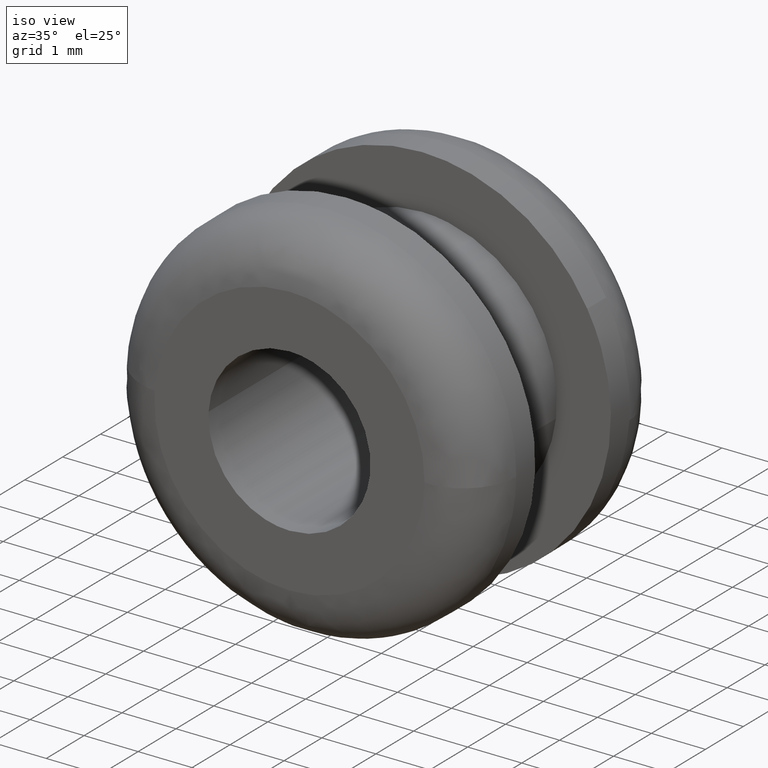
[diagram: clean part render]
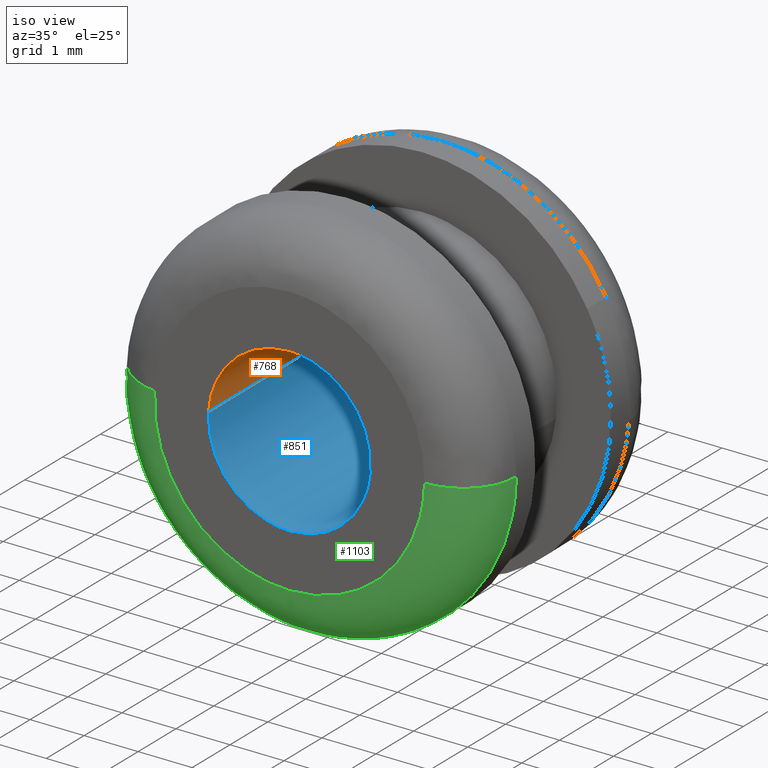
[diagram: same view with three faces highlighted in distinct colors, each labeled with its STEP entity id]
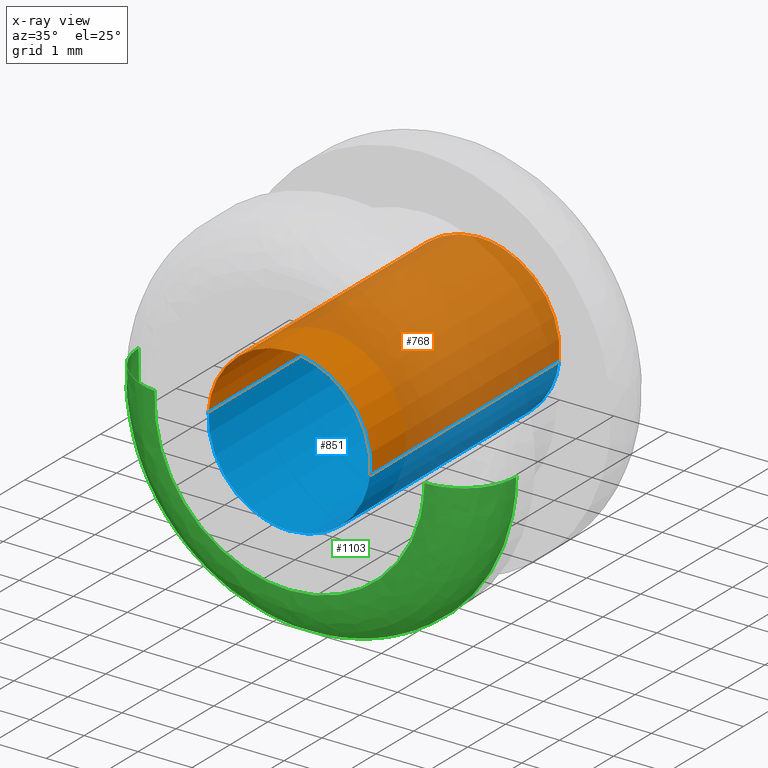
[diagram: x-ray of the same camera — body ghosted, the three highlighted faces saturated]
A machine part, iso view with three faces highlighted in distinct colors.
The next image is the same camera in x-ray (body ghosted, the three faces saturated) — at least one of them is partly hidden behind the body in this view.
Their STEP definitions:

[orange] entity #768 — the highlighted face is a freeform B-spline surface patch.
#662=CARTESIAN_POINT('',(1.486886853652700,5.125000000000002,-0.199155692128891));
#663=CARTESIAN_POINT('',(1.488204275768930,5.125000000000002,-0.188072359268188));
#664=CARTESIAN_POINT('',(1.494581423172908,5.125000000000001,-0.134422092956967));
#665=CARTESIAN_POINT('',(1.497202197632800,5.125000000000001,-0.091572809302286));
#666=CARTESIAN_POINT('',(1.588775006935085,5.125000000000001,1.405629388330514));
#667=CARTESIAN_POINT('',(0.091572809302285,5.125000000000001,1.497202197632800));
#668=CARTESIAN_POINT('',(-1.405629388330515,5.125000000000001,1.588775006935085));
#669=CARTESIAN_POINT('',(-1.497860766126688,5.125000000000001,0.080805309606100));
#670=CARTESIAN_POINT('',(-1.498515422629390,5.124999999999999,0.070101770400434));
#671=CARTESIAN_POINT('',(1.486886853652700,-0.128125000000000,-0.199155692128891));
#672=CARTESIAN_POINT('',(1.488204275768930,-0.128125000000000,-0.188072359268188));
#673=CARTESIAN_POINT('',(1.494581423172908,-0.128125000000000,-0.134422092956967));
#674=CARTESIAN_POINT('',(1.497202197632800,-0.128125000000000,-0.091572809302286));
#675=CARTESIAN_POINT('',(1.588775006935085,-0.128125000000000,1.405629388330514));
#676=CARTESIAN_POINT('',(0.091572809302285,-0.128125000000000,1.497202197632800));
#677=CARTESIAN_POINT('',(-1.405629388330515,-0.128125000000000,1.588775006935085));
#678=CARTESIAN_POINT('',(-1.497860766126688,-0.128125000000000,0.080805309606100));
#679=CARTESIAN_POINT('',(-1.498515422629390,-0.128125000000000,0.070101770400434));
#687=(BOUNDED_SURFACE()B_SPLINE_SURFACE(2,1,((#662,#671),(#663,#672),(#664,#673),(#665,#674),(#666,#675),(#667,#676),(#668,#677),(#669,#678),(#670,#679)),.UNSPECIFIED.,.F.,.F.,.U.)B_SPLINE_SURFACE_WITH_KNOTS((3,1,2,2,1,3),(2,2),(3.062739121878599,3.078760800517997,3.141592653589793,4.712388980384690,6.283185307179586,6.299209086163595),(0.0,5.253125000000002),.UNSPECIFIED.)GEOMETRIC_REPRESENTATION_ITEM()RATIONAL_B_SPLINE_SURFACE(((0.972008933159718,0.972008933159718),(0.974757366977422,0.974757366977422),(0.988284271247462,0.988284271247462),(1.0,1.0),(0.707106781186548,0.707106781186548),(1.0,1.0),(0.707106781186548,0.707106781186548),(1.002987819696369,1.002987819696369),(1.005975639392738,1.005975639392738)))REPRESENTATION_ITEM('')SURFACE());
#688=CARTESIAN_POINT('',(1.489514363747489,5.000000000000001,-0.177050727729420));
#689=VERTEX_POINT('',#688);
#690=CARTESIAN_POINT('',(0.0,5.0,1.500000000000000));
#691=VERTEX_POINT('',#690);
#692=CARTESIAN_POINT('',(1.489514363747489,5.000000000000001,-0.177050727729420));
#693=CARTESIAN_POINT('',(1.500000000000000,5.0,-0.088835548622643));
#694=CARTESIAN_POINT('',(1.500000000000000,5.0,-3.061516E-016));
#695=CARTESIAN_POINT('',(1.500000000000000,5.000000000000001,1.500000000000000));
#696=CARTESIAN_POINT('',(0.0,5.0,1.500000000000000));
#704=(BOUNDED_CURVE()B_SPLINE_CURVE(2,(#692,#693,#694,#695,#696),.UNSPECIFIED.,.F.,.U.)B_SPLINE_CURVE_WITH_KNOTS((3,2,3),(0.229562615174246,0.250000000000000,0.500000000000000),.UNSPECIFIED.)CURVE()GEOMETRIC_REPRESENTATION_ITEM()RATIONAL_B_SPLINE_CURVE((0.956027031844729,0.976056114297022,1.0,0.707106781186548,1.0))REPRESENTATION_ITEM(''));
#705=EDGE_CURVE('',#689,#691,#704,.T.);
#706=ORIENTED_EDGE('',*,*,#705,.F.);
#707=CARTESIAN_POINT('',(1.489514362852228,-2.868382E-016,-0.177050735261209));
#708=VERTEX_POINT('',#707);
#709=CARTESIAN_POINT('',(1.489514363747489,5.000000000000001,-0.177050727729420));
#710=CARTESIAN_POINT('',(1.489514362852228,-2.868382E-016,-0.177050735261209));
#711=QUASI_UNIFORM_CURVE('',1,(#709,#710),.UNSPECIFIED.,.F.,.U.);
#712=EDGE_CURVE('',#689,#708,#711,.T.);
#713=ORIENTED_EDGE('',*,*,#712,.T.);
#714=CARTESIAN_POINT('',(0.0,-2.755364E-016,1.500000000000000));
#715=VERTEX_POINT('',#714);
#716=CARTESIAN_POINT('',(1.489514362852228,-2.868382E-016,-0.177050735261209));
#717=CARTESIAN_POINT('',(1.500000000000000,-2.755364E-016,-0.088835556234056));
#718=CARTESIAN_POINT('',(1.500000000000000,-2.755364E-016,-3.061516E-016));
#719=CARTESIAN_POINT('',(1.500000000000000,-2.755364E-016,1.500000000000000));
#720=CARTESIAN_POINT('',(0.0,-2.755364E-016,1.500000000000000));
#728=(BOUNDED_CURVE()B_SPLINE_CURVE(2,(#716,#717,#718,#719,#720),.UNSPECIFIED.,.F.,.U.)B_SPLINE_CURVE_WITH_KNOTS((3,2,3),(0.229562613465102,0.250000000000000,0.500000000000000),.UNSPECIFIED.)CURVE()GEOMETRIC_REPRESENTATION_ITEM()RATIONAL_B_SPLINE_CURVE((0.956027028494733,0.976056112294636,1.0,0.707106781186548,1.0))REPRESENTATION_ITEM(''));
#729=EDGE_CURVE('',#708,#715,#728,.T.);
#730=ORIENTED_EDGE('',*,*,#729,.T.);
#731=CARTESIAN_POINT('',(-1.497202332087954,3.570413E-017,0.091570610926976));
#732=VERTEX_POINT('',#731);
#733=CARTESIAN_POINT('',(0.0,-2.755364E-016,1.500000000000000));
#734=CARTESIAN_POINT('',(-1.411061176120985,-2.755364E-016,1.500000000000000));
#735=CARTESIAN_POINT('',(-1.497202332087955,3.570413E-017,0.091570610926976));
#743=(BOUNDED_CURVE()B_SPLINE_CURVE(2,(#733,#734,#735),.UNSPECIFIED.,.F.,.U.)B_SPLINE_CURVE_WITH_KNOTS((3,3),(0.500000000000000,0.739333215596308),.UNSPECIFIED.)CURVE()GEOMETRIC_REPRESENTATION_ITEM()RATIONAL_B_SPLINE_CURVE((1.0,0.719603696460094,0.976072584660381))REPRESENTATION_ITEM(''));
#744=EDGE_CURVE('',#715,#732,#743,.T.);
#745=ORIENTED_EDGE('',*,*,#744,.T.);
#746=CARTESIAN_POINT('',(-1.497202333729064,5.000000000000005,0.091570584093772));
#747=VERTEX_POINT('',#746);
#748=CARTESIAN_POINT('',(-1.497202333729064,5.000000000000005,0.091570584093772));
#749=CARTESIAN_POINT('',(-1.497202332087954,3.570413E-017,0.091570610926976));
#750=QUASI_UNIFORM_CURVE('',1,(#748,#749),.UNSPECIFIED.,.F.,.U.);
#751=EDGE_CURVE('',#747,#732,#750,.T.);
#752=ORIENTED_EDGE('',*,*,#751,.F.);
#753=CARTESIAN_POINT('',(0.0,5.0,1.500000000000000));
#754=CARTESIAN_POINT('',(-1.411061201457600,4.999999999999999,1.500000000000000));
#755=CARTESIAN_POINT('',(-1.497202333729064,5.000000000000005,0.091570584093772));
#763=(BOUNDED_CURVE()B_SPLINE_CURVE(2,(#753,#754,#755),.UNSPECIFIED.,.F.,.U.)B_SPLINE_CURVE_WITH_KNOTS((3,3),(0.500000000000000,0.739333218688732),.UNSPECIFIED.)CURVE()GEOMETRIC_REPRESENTATION_ITEM()RATIONAL_B_SPLINE_CURVE((1.0,0.719603692837093,0.976072591288050))REPRESENTATION_ITEM(''));
#764=EDGE_CURVE('',#691,#747,#763,.T.);
#765=ORIENTED_EDGE('',*,*,#764,.F.);
#766=EDGE_LOOP('',(#706,#713,#730,#745,#752,#765));
#767=FACE_OUTER_BOUND('',#766,.T.);
#768=ADVANCED_FACE('',(#767),#687,.F.);

[blue] entity #851 — the highlighted face is a freeform B-spline surface patch.
#688=CARTESIAN_POINT('',(1.489514363747489,5.000000000000001,-0.177050727729420));
#689=VERTEX_POINT('',#688);
#707=CARTESIAN_POINT('',(1.489514362852228,-2.868382E-016,-0.177050735261209));
#708=VERTEX_POINT('',#707);
#709=CARTESIAN_POINT('',(1.489514363747489,5.000000000000001,-0.177050727729420));
#710=CARTESIAN_POINT('',(1.489514362852228,-2.868382E-016,-0.177050735261209));
#711=QUASI_UNIFORM_CURVE('',1,(#709,#710),.UNSPECIFIED.,.F.,.U.);
#712=EDGE_CURVE('',#689,#708,#711,.T.);
#731=CARTESIAN_POINT('',(-1.497202332087954,3.570413E-017,0.091570610926976));
#732=VERTEX_POINT('',#731);
#746=CARTESIAN_POINT('',(-1.497202333729064,5.000000000000005,0.091570584093772));
#747=VERTEX_POINT('',#746);
#748=CARTESIAN_POINT('',(-1.497202333729064,5.000000000000005,0.091570584093772));
#749=CARTESIAN_POINT('',(-1.497202332087954,3.570413E-017,0.091570610926976));
#750=QUASI_UNIFORM_CURVE('',1,(#748,#749),.UNSPECIFIED.,.F.,.U.);
#751=EDGE_CURVE('',#747,#732,#750,.T.);
#769=CARTESIAN_POINT('',(-1.497202197632800,5.125000000000001,0.091572809302285));
#770=CARTESIAN_POINT('',(-1.588775006935085,5.125000000000001,-1.405629388330515));
#771=CARTESIAN_POINT('',(-0.091572809302285,5.125000000000001,-1.497202197632800));
#772=CARTESIAN_POINT('',(1.322315236259252,5.125000000000001,-1.583679295098791));
#773=CARTESIAN_POINT('',(1.489514289545500,5.125000000000002,-0.177051351985138));
#774=CARTESIAN_POINT('',(-1.497202197632800,-0.128125000000000,0.091572809302285));
#775=CARTESIAN_POINT('',(-1.588775006935085,-0.128125000000000,-1.405629388330515));
#776=CARTESIAN_POINT('',(-0.091572809302285,-0.128125000000000,-1.497202197632800));
#777=CARTESIAN_POINT('',(1.322315236259252,-0.128125000000000,-1.583679295098791));
#778=CARTESIAN_POINT('',(1.489514289545500,-0.128125000000000,-0.177051351985138));
#786=(BOUNDED_SURFACE()B_SPLINE_SURFACE(2,1,((#769,#774),(#770,#775),(#771,#776),(#772,#777),(#773,#778)),.UNSPECIFIED.,.F.,.F.,.U.)B_SPLINE_SURFACE_WITH_KNOTS((3,2,3),(2,2),(0.0,1.570796326794897,3.078760800517997),(0.0,5.253125000000001),.UNSPECIFIED.)GEOMETRIC_REPRESENTATION_ITEM()RATIONAL_B_SPLINE_SURFACE(((1.0,1.0),(0.707106781186548,0.707106781186548),(1.0,1.0),(0.718822509939086,0.718822509939086),(0.977505800795127,0.977505800795127)))REPRESENTATION_ITEM('')SURFACE());
#787=CARTESIAN_POINT('',(0.0,5.0,-1.500000000000000));
#788=VERTEX_POINT('',#787);
#789=CARTESIAN_POINT('',(0.0,5.0,-1.500000000000000));
#790=CARTESIAN_POINT('',(1.332262913490977,5.000000000000001,-1.500000000000000));
#791=CARTESIAN_POINT('',(1.489514363747489,5.000000000000001,-0.177050727729420));
#799=(BOUNDED_CURVE()B_SPLINE_CURVE(2,(#789,#790,#791),.UNSPECIFIED.,.F.,.U.)B_SPLINE_CURVE_WITH_KNOTS((3,3),(0.0,0.229562615174245),.UNSPECIFIED.)CURVE()GEOMETRIC_REPRESENTATION_ITEM()RATIONAL_B_SPLINE_CURVE((1.0,0.731050666889525,0.956027031844729))REPRESENTATION_ITEM(''));
#800=EDGE_CURVE('',#788,#689,#799,.T.);
#801=ORIENTED_EDGE('',*,*,#800,.F.);
#802=CARTESIAN_POINT('',(-1.497202333729064,5.000000000000005,0.091570584093772));
#803=CARTESIAN_POINT('',(-1.500000000000000,5.000000000000001,0.045828029224119));
#804=CARTESIAN_POINT('',(-1.500000000000000,5.0,-3.061516E-016));
#805=CARTESIAN_POINT('',(-1.500000000000000,5.000000000000001,-1.500000000000000));
#806=CARTESIAN_POINT('',(0.0,5.0,-1.500000000000000));
#814=(BOUNDED_CURVE()B_SPLINE_CURVE(2,(#802,#803,#804,#805,#806),.UNSPECIFIED.,.F.,.U.)B_SPLINE_CURVE_WITH_KNOTS((3,2,3),(0.739333218688732,0.750000000000000,1.0),.UNSPECIFIED.)CURVE()GEOMETRIC_REPRESENTATION_ITEM()RATIONAL_B_SPLINE_CURVE((0.976072591288050,0.987503088349455,1.0,0.707106781186548,1.0))REPRESENTATION_ITEM(''));
#815=EDGE_CURVE('',#747,#788,#814,.T.);
#816=ORIENTED_EDGE('',*,*,#815,.F.);
#817=ORIENTED_EDGE('',*,*,#751,.T.);
#818=CARTESIAN_POINT('',(0.0,-2.755364E-016,-1.500000000000000));
#819=VERTEX_POINT('',#818);
#820=CARTESIAN_POINT('',(-1.497202332087955,3.570413E-017,0.091570610926976));
#821=CARTESIAN_POINT('',(-1.500000000000000,-2.755364E-016,0.045828042678337));
#822=CARTESIAN_POINT('',(-1.500000000000000,-2.755364E-016,-3.061516E-016));
#823=CARTESIAN_POINT('',(-1.500000000000000,-2.755364E-016,-1.500000000000000));
#824=CARTESIAN_POINT('',(0.0,-2.755364E-016,-1.500000000000000));
#832=(BOUNDED_CURVE()B_SPLINE_CURVE(2,(#820,#821,#822,#823,#824),.UNSPECIFIED.,.F.,.U.)B_SPLINE_CURVE_WITH_KNOTS((3,2,3),(0.739333215596308,0.750000000000000,1.0),.UNSPECIFIED.)CURVE()GEOMETRIC_REPRESENTATION_ITEM()RATIONAL_B_SPLINE_CURVE((0.976072584660381,0.987503084726454,1.0,0.707106781186548,1.0))REPRESENTATION_ITEM(''));
#833=EDGE_CURVE('',#732,#819,#832,.T.);
#834=ORIENTED_EDGE('',*,*,#833,.T.);
#835=CARTESIAN_POINT('',(0.0,-2.755364E-016,-1.500000000000000));
#836=CARTESIAN_POINT('',(1.332262899922851,-2.755364E-016,-1.500000000000000));
#837=CARTESIAN_POINT('',(1.489514362852228,-2.868382E-016,-0.177050735261209));
#845=(BOUNDED_CURVE()B_SPLINE_CURVE(2,(#835,#836,#837),.UNSPECIFIED.,.F.,.U.)B_SPLINE_CURVE_WITH_KNOTS((3,3),(0.0,0.229562613465102),.UNSPECIFIED.)CURVE()GEOMETRIC_REPRESENTATION_ITEM()RATIONAL_B_SPLINE_CURVE((1.0,0.731050668891912,0.956027028494733))REPRESENTATION_ITEM(''));
#846=EDGE_CURVE('',#819,#708,#845,.T.);
#847=ORIENTED_EDGE('',*,*,#846,.T.);
#848=ORIENTED_EDGE('',*,*,#712,.F.);
#849=EDGE_LOOP('',(#801,#816,#817,#834,#847,#848));
#850=FACE_OUTER_BOUND('',#849,.T.);
#851=ADVANCED_FACE('',(#850),#786,.F.);

[green] entity #1103 — the highlighted face is a freeform B-spline surface patch.
#70=CARTESIAN_POINT('',(1.899550481738850,0.999999999998983,-2.939678208124894));
#71=VERTEX_POINT('',#70);
#72=CARTESIAN_POINT('',(3.499723654713332,0.999999999993827,-0.043981139593659));
#73=VERTEX_POINT('',#72);
#74=CARTESIAN_POINT('',(1.899550481738849,0.999999999998983,-2.939678208124894));
#75=CARTESIAN_POINT('',(3.476136023944697,0.999999999997179,-1.920926351079820));
#76=CARTESIAN_POINT('',(3.499723654713332,0.999999999993827,-0.043981139593659));
#84=(BOUNDED_CURVE()B_SPLINE_CURVE(2,(#74,#75,#76),.UNSPECIFIED.,.F.,.U.)B_SPLINE_CURVE_WITH_KNOTS((3,3),(0.092934687548090,0.247784295921535),.UNSPECIFIED.)CURVE()GEOMETRIC_REPRESENTATION_ITEM()RATIONAL_B_SPLINE_CURVE((0.863190132936236,0.816652436475568,0.994854295643567))REPRESENTATION_ITEM(''));
#85=EDGE_CURVE('',#71,#73,#84,.T.);
#128=CARTESIAN_POINT('',(-2.700686320416099,0.999999999999991,-2.226273433052903));
#129=VERTEX_POINT('',#128);
#135=CARTESIAN_POINT('',(-3.491479858441498,0.999999999993767,0.244066380514253));
#136=VERTEX_POINT('',#135);
#137=CARTESIAN_POINT('',(-3.491479858441499,0.999999999993767,0.244066380514253));
#138=CARTESIAN_POINT('',(-3.500000000000000,1.0,0.122181905561697));
#139=CARTESIAN_POINT('',(-3.500000000000000,1.0,-3.061516E-016));
#140=CARTESIAN_POINT('',(-3.500000000000000,1.0,-1.256627908634423));
#141=CARTESIAN_POINT('',(-2.700686320416099,0.999999999999991,-2.226273433052903));
#149=(BOUNDED_CURVE()B_SPLINE_CURVE(2,(#137,#138,#139,#140,#141),.UNSPECIFIED.,.F.,.U.)B_SPLINE_CURVE_WITH_KNOTS((3,2,3),(0.737833686535114,0.750000000000000,0.860504588013076),.UNSPECIFIED.)CURVE()GEOMETRIC_REPRESENTATION_ITEM()RATIONAL_B_SPLINE_CURVE((0.972879876387024,0.985746277152705,1.0,0.870535822092783,0.855522729322275))REPRESENTATION_ITEM(''));
#150=EDGE_CURVE('',#136,#129,#149,.T.);
#199=CARTESIAN_POINT('',(0.0,1.0,-3.500000000000000));
#200=VERTEX_POINT('',#199);
#201=CARTESIAN_POINT('',(0.0,1.0,-3.500000000000000));
#202=CARTESIAN_POINT('',(1.032415634382080,1.0,-3.500000000000001));
#203=CARTESIAN_POINT('',(1.899550481738850,0.999999999998983,-2.939678208124894));
#211=(BOUNDED_CURVE()B_SPLINE_CURVE(2,(#201,#202,#203),.UNSPECIFIED.,.F.,.U.)B_SPLINE_CURVE_WITH_KNOTS((3,3),(0.0,0.092934687548090),.UNSPECIFIED.)CURVE()GEOMETRIC_REPRESENTATION_ITEM()RATIONAL_B_SPLINE_CURVE((1.0,0.891120240898470,0.863190132936235))REPRESENTATION_ITEM(''));
#212=EDGE_CURVE('',#200,#71,#211,.T.);
#214=CARTESIAN_POINT('',(-2.700686320416099,0.999999999999991,-2.226273433052902));
#215=CARTESIAN_POINT('',(-1.650707701043124,1.0,-3.500000000000001));
#216=CARTESIAN_POINT('',(0.0,1.0,-3.500000000000000));
#224=(BOUNDED_CURVE()B_SPLINE_CURVE(2,(#214,#215,#216),.UNSPECIFIED.,.F.,.U.)B_SPLINE_CURVE_WITH_KNOTS((3,3),(0.860504588013076,1.0),.UNSPECIFIED.)CURVE()GEOMETRIC_REPRESENTATION_ITEM()RATIONAL_B_SPLINE_CURVE((0.855522729322274,0.836570959093765,1.0))REPRESENTATION_ITEM(''));
#225=EDGE_CURVE('',#129,#200,#224,.T.);
#1008=CARTESIAN_POINT('',(-3.489065129812964,1.069537111923129,0.243897389225861));
#1009=CARTESIAN_POINT('',(-3.496045361571412,1.069537111923128,0.144041940572958));
#1010=CARTESIAN_POINT('',(-3.497303211133006,1.069537111923128,0.043950721799507));
#1011=CARTESIAN_POINT('',(-3.541253932932515,1.069537111923128,-3.453352489333500));
#1012=CARTESIAN_POINT('',(-0.043950721799508,1.069537111923128,-3.497303211133006));
#1013=CARTESIAN_POINT('',(3.453352489333500,1.069537111923128,-3.541253932932515));
#1014=CARTESIAN_POINT('',(3.497303211133006,1.069537111923128,-0.043950721799508));
#1015=CARTESIAN_POINT('',(-3.568828273172317,-0.077537242823307,0.249473101257020));
#1016=CARTESIAN_POINT('',(-3.575968079259623,-0.077537242823307,0.147334867912579));
#1017=CARTESIAN_POINT('',(-3.577254684385009,-0.077537242823307,0.044955474532177));
#1018=CARTESIAN_POINT('',(-3.622210158917184,-0.077537242823307,-3.532299209852830));
#1019=CARTESIAN_POINT('',(-0.044955474532177,-0.077537242823307,-3.577254684385009));
#1020=CARTESIAN_POINT('',(3.532299209852830,-0.077537242823307,-3.622210158917184));
#1021=CARTESIAN_POINT('',(3.577254684385009,-0.077537242823307,-0.044955474532178));
#1022=CARTESIAN_POINT('',(-2.424546273866869,0.002420640585330,0.169483940325619));
#1023=CARTESIAN_POINT('',(-2.429396826743071,0.002420640585330,0.100094534582517));
#1024=CARTESIAN_POINT('',(-2.430270904570279,0.002420640585330,0.030541292526249));
#1025=CARTESIAN_POINT('',(-2.460812197096528,0.002420640585330,-2.399729612044029));
#1026=CARTESIAN_POINT('',(-0.030541292526250,0.002420640585330,-2.430270904570279));
#1027=CARTESIAN_POINT('',(2.399729612044029,0.002420640585330,-2.460812197096528));
#1028=CARTESIAN_POINT('',(2.430270904570279,0.002420640585330,-0.030541292526251));
#1036=(BOUNDED_SURFACE()B_SPLINE_SURFACE(2,2,((#1008,#1015,#1022),(#1009,#1016,#1023),(#1010,#1017,#1024),(#1011,#1018,#1025),(#1012,#1019,#1026),(#1013,#1020,#1027),(#1014,#1021,#1028)),.UNSPECIFIED.,.F.,.F.,.U.)B_SPLINE_SURFACE_WITH_KNOTS((3,2,2,3),(3,3),(0.0,0.231798948312221,6.026778182640606,11.821757416968991),(0.0,1.822374020560326),.UNSPECIFIED.)GEOMETRIC_REPRESENTATION_ITEM()RATIONAL_B_SPLINE_SURFACE(((0.889999301068235,0.584039748018019,0.889999335365820),(0.899812872104528,0.590479658193582,0.899812906780295),(0.910479796259388,0.597479559977835,0.910479831346223),(0.643806438068360,0.422481848480682,0.643806462878498),(0.910479796259388,0.597479559977835,0.910479831346223),(0.643806438068360,0.422481848480682,0.643806462878498),(0.910479796259388,0.597479559977835,0.910479831346223)))REPRESENTATION_ITEM('')SURFACE());
#1037=ORIENTED_EDGE('',*,*,#150,.T.);
#1038=ORIENTED_EDGE('',*,*,#225,.T.);
#1039=ORIENTED_EDGE('',*,*,#212,.T.);
#1040=ORIENTED_EDGE('',*,*,#85,.T.);
#1041=CARTESIAN_POINT('',(2.499802610520170,-2.537659E-017,-0.031415099709199));
#1042=VERTEX_POINT('',#1041);
#1043=CARTESIAN_POINT('',(3.499723654713332,0.999999999993827,-0.043981139593659));
#1044=CARTESIAN_POINT('',(3.499723654701009,2.128210E-011,-0.043981139591580));
#1045=CARTESIAN_POINT('',(2.499802610520171,-2.537659E-017,-0.031415099709199));
#1053=(BOUNDED_CURVE()B_SPLINE_CURVE(2,(#1043,#1044,#1045),.UNSPECIFIED.,.F.,.U.)B_SPLINE_CURVE_WITH_KNOTS((3,3),(-1.725134643269153,-0.274865356740010),.UNSPECIFIED.)CURVE()GEOMETRIC_REPRESENTATION_ITEM()RATIONAL_B_SPLINE_CURVE((0.883342149648542,0.624617224133733,0.883342149645273))REPRESENTATION_ITEM(''));
#1054=EDGE_CURVE('',#73,#1042,#1053,.T.);
#1055=ORIENTED_EDGE('',*,*,#1054,.T.);
#1056=CARTESIAN_POINT('',(0.0,-4.592274E-016,-2.500000000000000));
#1057=VERTEX_POINT('',#1056);
#1058=CARTESIAN_POINT('',(0.0,-4.592274E-016,-2.500000000000000));
#1059=CARTESIAN_POINT('',(2.468779824766935,-4.592274E-016,-2.500000000000000));
#1060=CARTESIAN_POINT('',(2.499802610520170,-2.537659E-017,-0.031415099709199));
#1068=(BOUNDED_CURVE()B_SPLINE_CURVE(2,(#1058,#1059,#1060),.UNSPECIFIED.,.F.,.U.)B_SPLINE_CURVE_WITH_KNOTS((3,3),(0.0,0.247784295921632),.UNSPECIFIED.)CURVE()GEOMETRIC_REPRESENTATION_ITEM()RATIONAL_B_SPLINE_CURVE((1.0,0.709702639984353,0.994854295643791))REPRESENTATION_ITEM(''));
#1069=EDGE_CURVE('',#1057,#1042,#1068,.T.);
#1070=ORIENTED_EDGE('',*,*,#1069,.F.);
#1071=CARTESIAN_POINT('',(-2.493914184636278,-2.067672E-017,0.174333128946536));
#1072=VERTEX_POINT('',#1071);
#1073=CARTESIAN_POINT('',(-2.493914184636278,-2.067672E-017,0.174333128946536));
#1074=CARTESIAN_POINT('',(-2.500000000000000,-4.592274E-016,0.087272789692242));
#1075=CARTESIAN_POINT('',(-2.500000000000000,-4.592274E-016,-3.061516E-016));
#1076=CARTESIAN_POINT('',(-2.500000000000000,-4.592274E-016,-2.500000000000000));
#1077=CARTESIAN_POINT('',(0.0,-4.592274E-016,-2.500000000000000));
#1085=(BOUNDED_CURVE()B_SPLINE_CURVE(2,(#1073,#1074,#1075,#1076,#1077),.UNSPECIFIED.,.F.,.U.)B_SPLINE_CURVE_WITH_KNOTS((3,2,3),(0.737833686534384,0.750000000000000,1.0),.UNSPECIFIED.)CURVE()GEOMETRIC_REPRESENTATION_ITEM()RATIONAL_B_SPLINE_CURVE((0.972879876385479,0.985746277151849,1.0,0.707106781186548,1.0))REPRESENTATION_ITEM(''));
#1086=EDGE_CURVE('',#1072,#1057,#1085,.T.);
#1087=ORIENTED_EDGE('',*,*,#1086,.F.);
#1088=CARTESIAN_POINT('',(-3.491479858441499,0.999999999993767,0.244066380514253));
#1089=CARTESIAN_POINT('',(-3.491479858429078,7.132928E-011,0.244066380513178));
#1090=CARTESIAN_POINT('',(-2.493914184636279,-2.067672E-017,0.174333128946536));
#1098=(BOUNDED_CURVE()B_SPLINE_CURVE(2,(#1088,#1089,#1090),.UNSPECIFIED.,.F.,.U.)B_SPLINE_CURVE_WITH_KNOTS((3,3),(-1.725134643269031,-0.274865356791333),.UNSPECIFIED.)CURVE()GEOMETRIC_REPRESENTATION_ITEM()RATIONAL_B_SPLINE_CURVE((0.863472075368244,0.610566959876245,0.863472075347191))REPRESENTATION_ITEM(''));
#1099=EDGE_CURVE('',#136,#1072,#1098,.T.);
#1100=ORIENTED_EDGE('',*,*,#1099,.F.);
#1101=EDGE_LOOP('',(#1037,#1038,#1039,#1040,#1055,#1070,#1087,#1100));
#1102=FACE_OUTER_BOUND('',#1101,.T.);
#1103=ADVANCED_FACE('',(#1102),#1036,.T.);